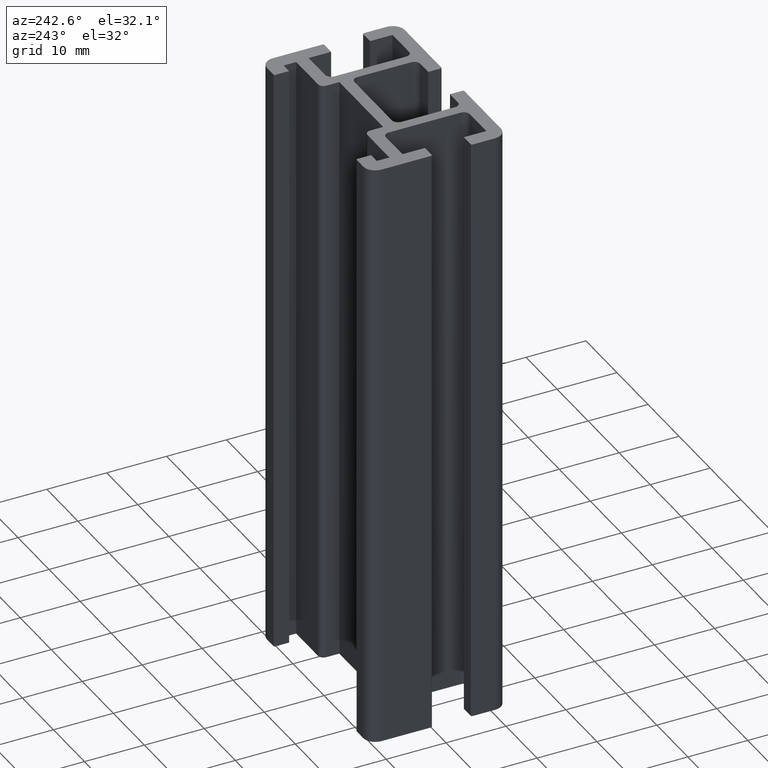
[diagram: clean part render]
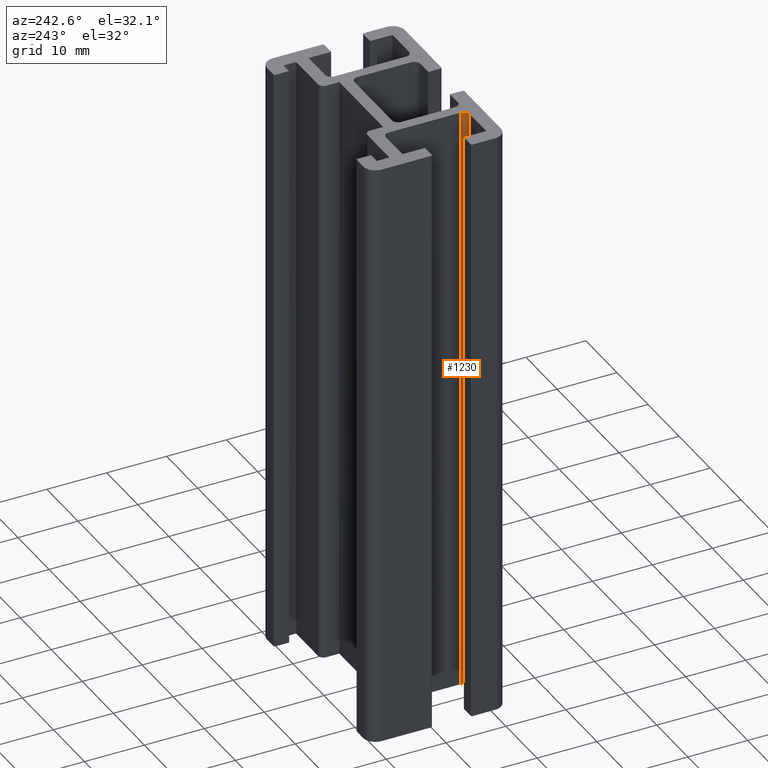
[diagram: same view with one face highlighted and labeled with its STEP entity id]
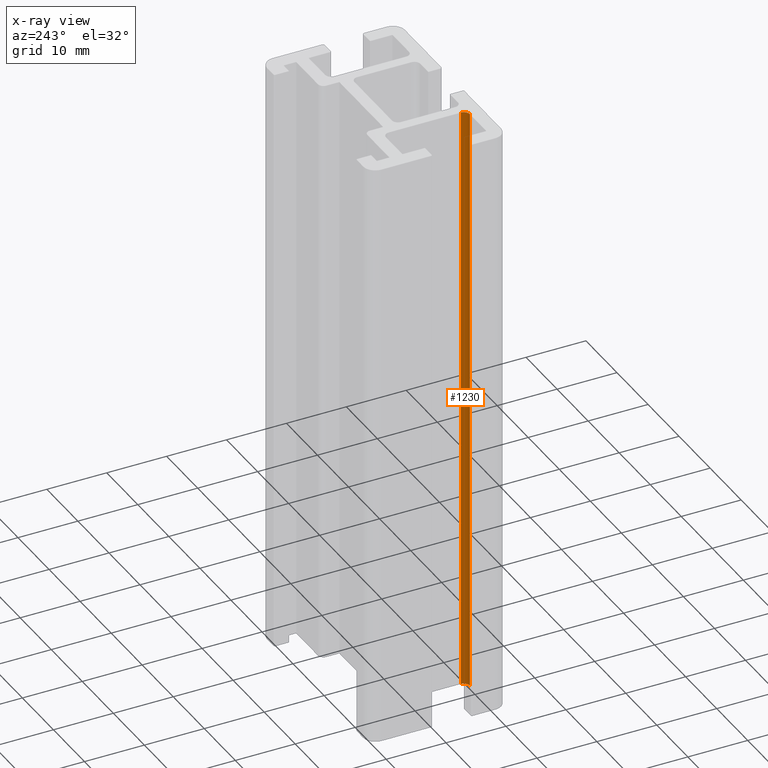
[diagram: x-ray of the same camera — body ghosted, the highlighted face saturated]
A machine part, auxiliary view. The second image highlights one B-rep face of the part: STEP entity #1230.
The next image is the same camera in x-ray: the body ghosted, the highlighted face saturated — about 0% of this face is hidden behind the body in this view.
In plain terms, the highlighted cylindrical surface (edge-blend (fillet) strip) has radius 1 mm, axis along (0, 0, 1).
Its self-contained STEP definition (entity closure, byte-faithful):
#70=FACE_OUTER_BOUND('',#134,.T.);
#134=EDGE_LOOP('',(#875,#876,#877,#878));
#214=LINE('',#1832,#356);
#215=LINE('',#1838,#357);
#356=VECTOR('',#1468,100.);
#357=VECTOR('',#1475,100.);
#479=CIRCLE('',#1307,1.);
#480=CIRCLE('',#1308,1.);
#539=VERTEX_POINT('',#1828);
#540=VERTEX_POINT('',#1830);
#541=VERTEX_POINT('',#1834);
#542=VERTEX_POINT('',#1836);
#676=EDGE_CURVE('',#539,#540,#214,.T.);
#677=EDGE_CURVE('',#541,#539,#479,.T.);
#678=EDGE_CURVE('',#542,#540,#480,.T.);
#679=EDGE_CURVE('',#541,#542,#215,.T.);
#875=ORIENTED_EDGE('',*,*,#677,.T.);
#876=ORIENTED_EDGE('',*,*,#676,.T.);
#877=ORIENTED_EDGE('',*,*,#678,.F.);
#878=ORIENTED_EDGE('',*,*,#679,.F.);
#1200=CYLINDRICAL_SURFACE('',#1306,1.);
#1230=ADVANCED_FACE('',(#70),#1200,.F.);
#1306=AXIS2_PLACEMENT_3D('',#1833,#1469,#1470);
#1307=AXIS2_PLACEMENT_3D('',#1835,#1471,#1472);
#1308=AXIS2_PLACEMENT_3D('',#1837,#1473,#1474);
#1468=DIRECTION('',(0.,0.,1.));
#1469=DIRECTION('center_axis',(0.,0.,1.));
#1470=DIRECTION('ref_axis',(0.,1.,0.));
#1471=DIRECTION('center_axis',(0.,0.,-1.));
#1472=DIRECTION('ref_axis',(0.,1.,0.));
#1473=DIRECTION('center_axis',(0.,0.,-1.));
#1474=DIRECTION('ref_axis',(0.,1.,0.));
#1475=DIRECTION('',(0.,0.,1.));
#1828=CARTESIAN_POINT('',(-9.80000000000002,-9.25000000000001,0.));
#1830=CARTESIAN_POINT('',(-9.80000000000002,-9.25000000000001,100.));
#1832=CARTESIAN_POINT('',(-9.80000000000002,-9.25000000000001,0.));
#1833=CARTESIAN_POINT('Origin',(-9.80000000000002,-8.24999999999999,0.));
#1834=CARTESIAN_POINT('',(-8.80000000000001,-8.25000000000003,0.));
#1835=CARTESIAN_POINT('Origin',(-9.80000000000002,-8.24999999999999,0.));
#1836=CARTESIAN_POINT('',(-8.80000000000001,-8.25000000000003,100.));
#1837=CARTESIAN_POINT('Origin',(-9.80000000000002,-8.24999999999999,100.));
#1838=CARTESIAN_POINT('',(-8.80000000000001,-8.25000000000003,0.));